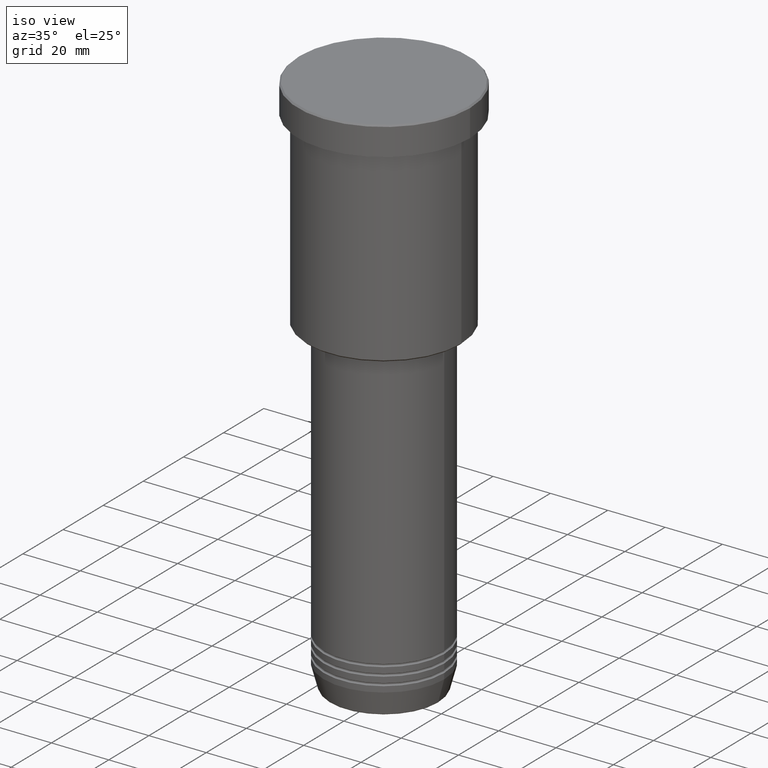
[diagram: clean part render]
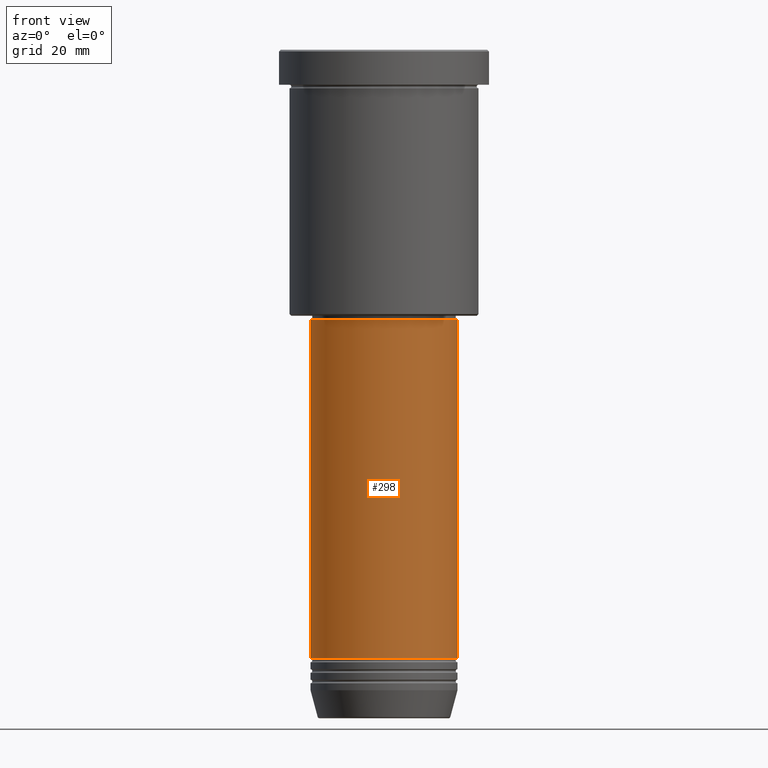
[diagram: tour spotlight — one face highlighted and labeled with its STEP entity id]
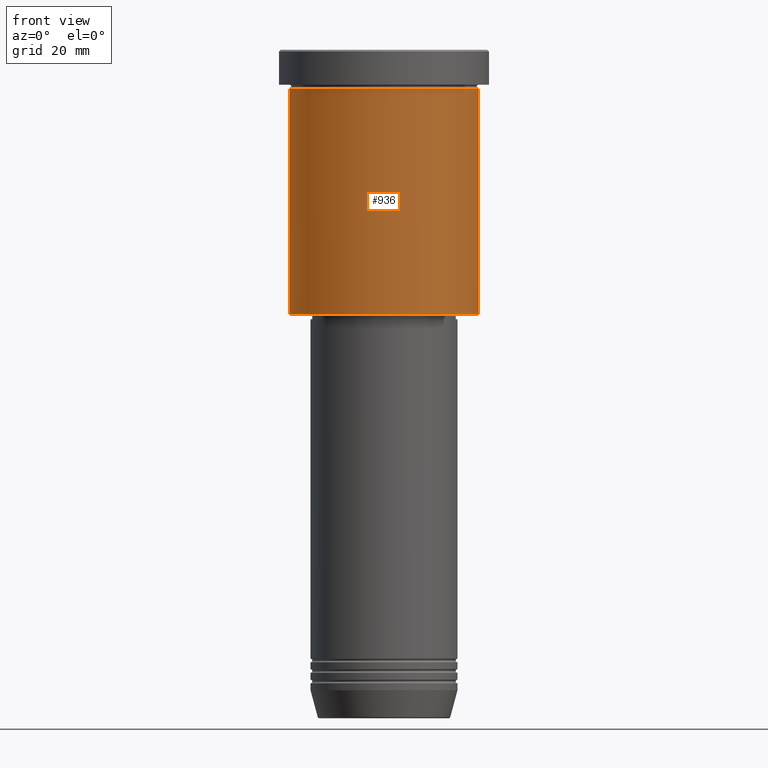
[diagram: tour spotlight — one face highlighted and labeled with its STEP entity id]
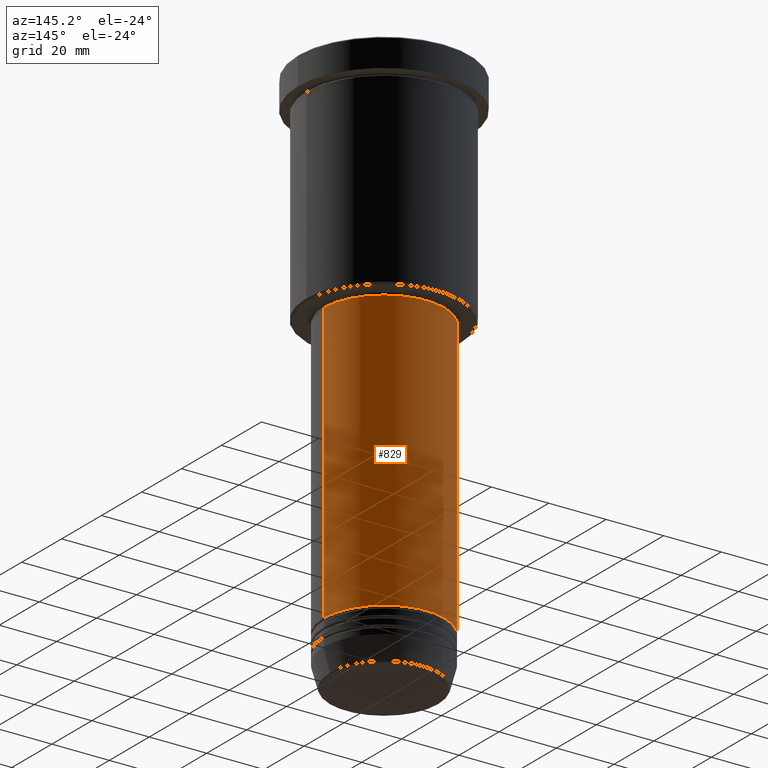
[diagram: tour spotlight — one face highlighted and labeled with its STEP entity id]
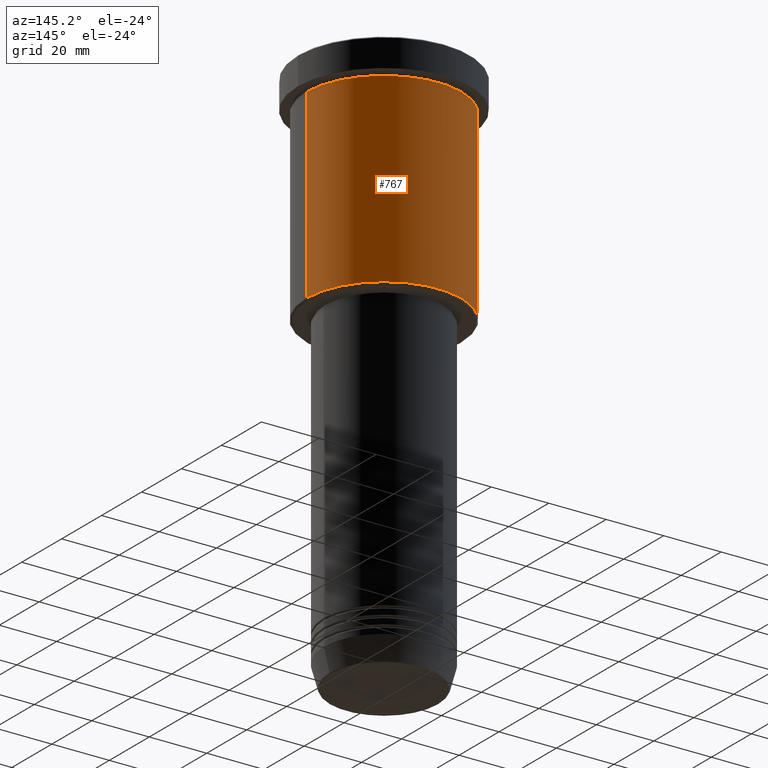
[diagram: tour spotlight — one face highlighted and labeled with its STEP entity id]
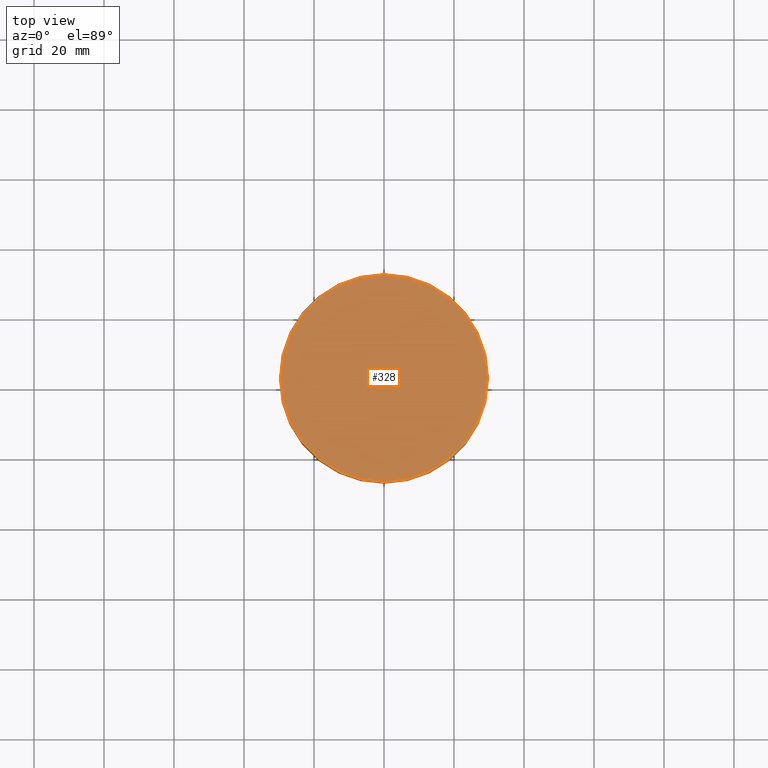
[diagram: tour spotlight — one face highlighted and labeled with its STEP entity id]
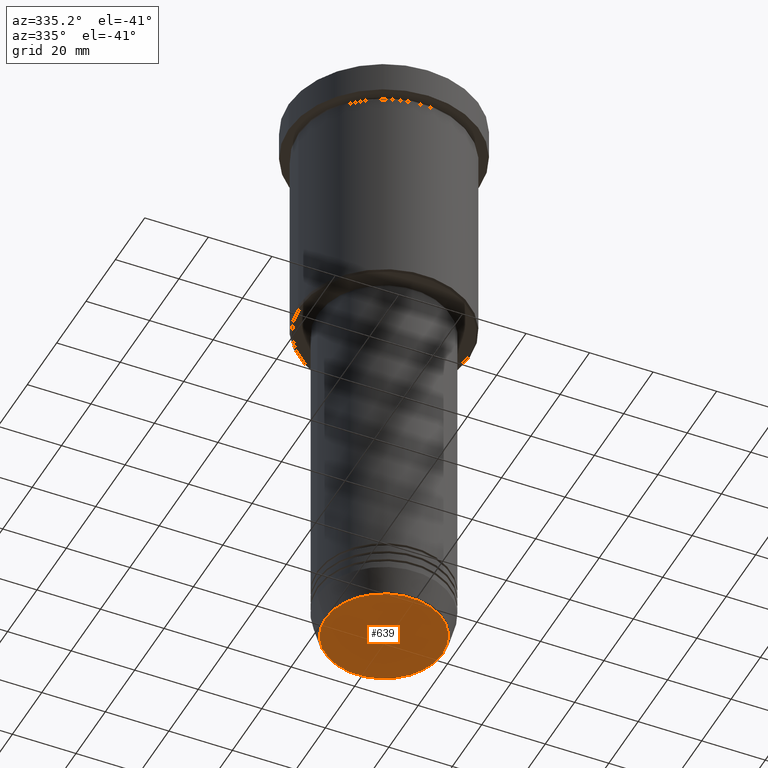
[diagram: tour spotlight — one face highlighted and labeled with its STEP entity id]
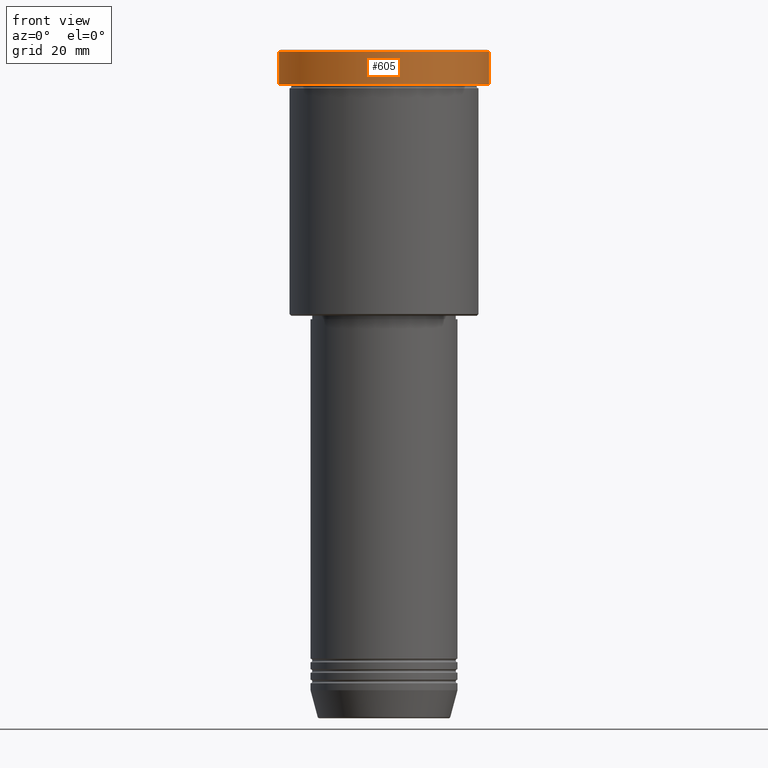
[diagram: tour spotlight — one face highlighted and labeled with its STEP entity id]
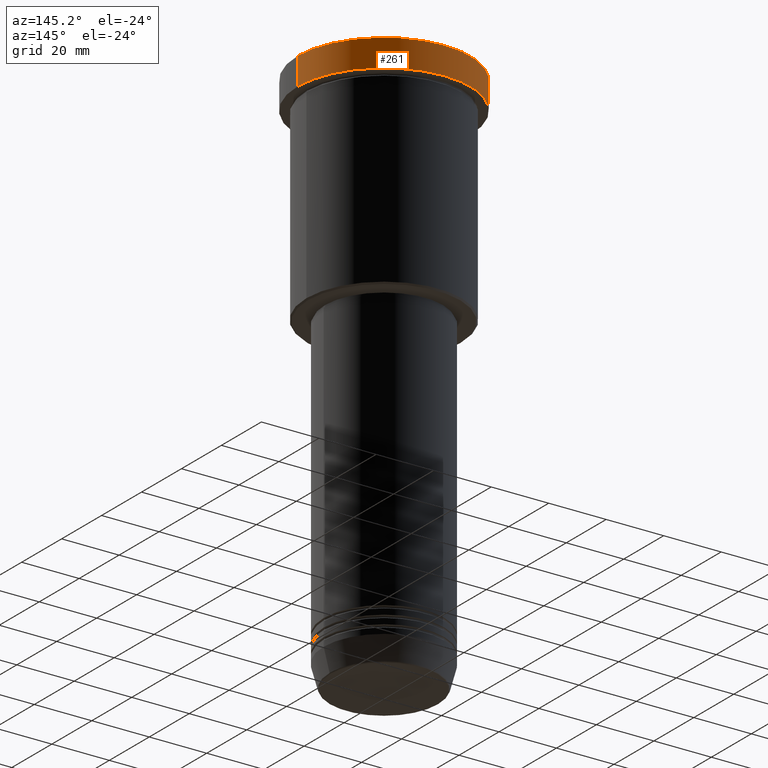
[diagram: tour spotlight — one face highlighted and labeled with its STEP entity id]
A machine part: a face-by-face anatomy tour. The part has 43 B-rep faces; the first image is the clean iso view, then the 8 largest visible faces are spotlighted one at a time (largest first), each with its STEP entity span.

Face 1 — front view, entity #298. In plain terms, the highlighted cylindrical surface (partial cylindrical patch) has radius 21 mm, axis along (-0, -0, 1).
Definition (entity closure, byte-faithful):
#11 = AXIS2_PLACEMENT_3D ( 'NONE', #70, #1156, #1179 ) ;
#22 = CARTESIAN_POINT ( 'NONE',  ( -21.00000000000000000, 2.571758278209441661E-15, 0.000000000000000000 ) ) ;
#27 = DIRECTION ( 'NONE',  ( -0.000000000000000000, -0.000000000000000000, 1.000000000000000000 ) ) ;
#48 = CARTESIAN_POINT ( 'NONE',  ( 21.00000000000000000, 0.000000000000000000, -174.0000000000000000 ) ) ;
#70 = CARTESIAN_POINT ( 'NONE',  ( 0.000000000000000000, 0.000000000000000000, -174.0000000000000000 ) ) ;
#79 = VERTEX_POINT ( 'NONE', #671 ) ;
#90 = AXIS2_PLACEMENT_3D ( 'NONE', #856, #1044, #472 ) ;
#97 = EDGE_CURVE ( 'NONE', #403, #1038, #1109, .T. ) ;
#123 = CARTESIAN_POINT ( 'NONE',  ( 21.00000000000000000, 0.000000000000000000, -77.00000000000001421 ) ) ;
#127 = EDGE_CURVE ( 'NONE', #712, #79, #455, .T. ) ;
#151 = CARTESIAN_POINT ( 'NONE',  ( -21.00000000000000000, 2.571758278209441661E-15, -174.0000000000000000 ) ) ;
#189 = VECTOR ( 'NONE', #27, 1000.000000000000000 ) ;
#243 = AXIS2_PLACEMENT_3D ( 'NONE', #1085, #290, #271 ) ;
#271 = DIRECTION ( 'NONE',  ( 1.000000000000000000, 0.000000000000000000, 0.000000000000000000 ) ) ;
#290 = DIRECTION ( 'NONE',  ( -0.000000000000000000, -0.000000000000000000, 1.000000000000000000 ) ) ;
#298 = ADVANCED_FACE ( 'NONE', ( #1169 ), #804, .T. ) ;
#314 = ORIENTED_EDGE ( 'NONE', *, *, #343, .F. ) ;
#343 = EDGE_CURVE ( 'NONE', #79, #1038, #1018, .T. ) ;
#389 = ORIENTED_EDGE ( 'NONE', *, *, #127, .F. ) ;
#392 = DIRECTION ( 'NONE',  ( -0.000000000000000000, -0.000000000000000000, 1.000000000000000000 ) ) ;
#403 = VERTEX_POINT ( 'NONE', #48 ) ;
#455 = LINE ( 'NONE', #22, #189 ) ;
#472 = DIRECTION ( 'NONE',  ( 1.000000000000000000, 0.000000000000000000, 0.000000000000000000 ) ) ;
#535 = ORIENTED_EDGE ( 'NONE', *, *, #812, .T. ) ;
#671 = CARTESIAN_POINT ( 'NONE',  ( -21.00000000000000000, 2.571758278209441661E-15, -77.00000000000001421 ) ) ;
#712 = VERTEX_POINT ( 'NONE', #151 ) ;
#739 = CIRCLE ( 'NONE', #11, 21.00000000000000000 ) ;
#747 = CARTESIAN_POINT ( 'NONE',  ( 21.00000000000000000, 0.000000000000000000, 0.000000000000000000 ) ) ;
#754 = ORIENTED_EDGE ( 'NONE', *, *, #97, .T. ) ;
#804 = CYLINDRICAL_SURFACE ( 'NONE', #243, 21.00000000000000000 ) ;
#812 = EDGE_CURVE ( 'NONE', #712, #403, #739, .T. ) ;
#856 = CARTESIAN_POINT ( 'NONE',  ( 0.000000000000000000, 0.000000000000000000, -77.00000000000001421 ) ) ;
#1018 = CIRCLE ( 'NONE', #90, 21.00000000000000000 ) ;
#1038 = VERTEX_POINT ( 'NONE', #123 ) ;
#1044 = DIRECTION ( 'NONE',  ( -0.000000000000000000, -0.000000000000000000, 1.000000000000000000 ) ) ;
#1079 = VECTOR ( 'NONE', #392, 1000.000000000000000 ) ;
#1085 = CARTESIAN_POINT ( 'NONE',  ( 0.000000000000000000, 0.000000000000000000, 0.000000000000000000 ) ) ;
#1093 = EDGE_LOOP ( 'NONE', ( #389, #535, #754, #314 ) ) ;
#1109 = LINE ( 'NONE', #747, #1079 ) ;
#1156 = DIRECTION ( 'NONE',  ( -0.000000000000000000, -0.000000000000000000, 1.000000000000000000 ) ) ;
#1169 = FACE_OUTER_BOUND ( 'NONE', #1093, .T. ) ;
#1179 = DIRECTION ( 'NONE',  ( 1.000000000000000000, 0.000000000000000000, 0.000000000000000000 ) ) ;

Face 2 — front view, entity #936. In plain terms, the highlighted cylindrical surface (partial cylindrical patch) has radius 27 mm, axis along (-0, -0, 1).
Definition (entity closure, byte-faithful):
#13 = VECTOR ( 'NONE', #251, 1000.000000000000000 ) ;
#23 = EDGE_CURVE ( 'NONE', #44, #197, #736, .T. ) ;
#44 = VERTEX_POINT ( 'NONE', #540 ) ;
#98 = ORIENTED_EDGE ( 'NONE', *, *, #1121, .T. ) ;
#197 = VERTEX_POINT ( 'NONE', #461 ) ;
#205 = EDGE_CURVE ( 'NONE', #1088, #44, #922, .T. ) ;
#207 = CIRCLE ( 'NONE', #779, 27.00000000000000355 ) ;
#242 = EDGE_LOOP ( 'NONE', ( #819, #1155, #98, #610 ) ) ;
#248 = VERTEX_POINT ( 'NONE', #1123 ) ;
#251 = DIRECTION ( 'NONE',  ( -0.000000000000000000, -0.000000000000000000, 1.000000000000000000 ) ) ;
#252 = CARTESIAN_POINT ( 'NONE',  ( 0.000000000000000000, 0.000000000000000000, 0.000000000000000000 ) ) ;
#277 = DIRECTION ( 'NONE',  ( -0.000000000000000000, -0.000000000000000000, 1.000000000000000000 ) ) ;
#433 = AXIS2_PLACEMENT_3D ( 'NONE', #252, #277, #533 ) ;
#435 = EDGE_CURVE ( 'NONE', #1088, #248, #207, .T. ) ;
#461 = CARTESIAN_POINT ( 'NONE',  ( 27.00000000000000355, 0.000000000000000000, -10.99999999999999289 ) ) ;
#533 = DIRECTION ( 'NONE',  ( 1.000000000000000000, 0.000000000000000000, 0.000000000000000000 ) ) ;
#540 = CARTESIAN_POINT ( 'NONE',  ( -27.00000000000000355, 3.306546357697854128E-15, -10.99999999999999289 ) ) ;
#544 = CARTESIAN_POINT ( 'NONE',  ( 0.000000000000000000, 0.000000000000000000, -10.99999999999999289 ) ) ;
#554 = DIRECTION ( 'NONE',  ( -0.000000000000000000, -0.000000000000000000, 1.000000000000000000 ) ) ;
#595 = CARTESIAN_POINT ( 'NONE',  ( -27.00000000000000355, 3.306546357697854128E-15, -75.50000000000000000 ) ) ;
#610 = ORIENTED_EDGE ( 'NONE', *, *, #23, .F. ) ;
#632 = DIRECTION ( 'NONE',  ( 1.000000000000000000, 0.000000000000000000, 0.000000000000000000 ) ) ;
#658 = DIRECTION ( 'NONE',  ( -1.000000000000000000, 0.000000000000000000, 0.000000000000000000 ) ) ;
#685 = VECTOR ( 'NONE', #554, 1000.000000000000000 ) ;
#715 = LINE ( 'NONE', #1075, #13 ) ;
#719 = DIRECTION ( 'NONE',  ( -0.000000000000000000, -0.000000000000000000, 1.000000000000000000 ) ) ;
#736 = CIRCLE ( 'NONE', #1001, 27.00000000000000355 ) ;
#779 = AXIS2_PLACEMENT_3D ( 'NONE', #1128, #946, #658 ) ;
#819 = ORIENTED_EDGE ( 'NONE', *, *, #205, .F. ) ;
#835 = CARTESIAN_POINT ( 'NONE',  ( -27.00000000000000355, 3.306546357697854128E-15, 0.000000000000000000 ) ) ;
#922 = LINE ( 'NONE', #835, #685 ) ;
#936 = ADVANCED_FACE ( 'NONE', ( #1090 ), #990, .T. ) ;
#946 = DIRECTION ( 'NONE',  ( -0.000000000000000000, -0.000000000000000000, 1.000000000000000000 ) ) ;
#990 = CYLINDRICAL_SURFACE ( 'NONE', #433, 27.00000000000000355 ) ;
#1001 = AXIS2_PLACEMENT_3D ( 'NONE', #544, #719, #632 ) ;
#1075 = CARTESIAN_POINT ( 'NONE',  ( 27.00000000000000355, 0.000000000000000000, 0.000000000000000000 ) ) ;
#1088 = VERTEX_POINT ( 'NONE', #595 ) ;
#1090 = FACE_OUTER_BOUND ( 'NONE', #242, .T. ) ;
#1121 = EDGE_CURVE ( 'NONE', #248, #197, #715, .T. ) ;
#1123 = CARTESIAN_POINT ( 'NONE',  ( 27.00000000000000355, 0.000000000000000000, -75.50000000000000000 ) ) ;
#1128 = CARTESIAN_POINT ( 'NONE',  ( 0.000000000000000000, 0.000000000000000000, -75.50000000000000000 ) ) ;
#1155 = ORIENTED_EDGE ( 'NONE', *, *, #435, .T. ) ;

Face 3 — auxiliary view, entity #829. In plain terms, the highlighted cylindrical surface (partial cylindrical patch) has radius 21 mm, axis along (-0, -0, 1).
Definition (entity closure, byte-faithful):
#22 = CARTESIAN_POINT ( 'NONE',  ( -21.00000000000000000, 2.571758278209441661E-15, 0.000000000000000000 ) ) ;
#27 = DIRECTION ( 'NONE',  ( -0.000000000000000000, -0.000000000000000000, 1.000000000000000000 ) ) ;
#48 = CARTESIAN_POINT ( 'NONE',  ( 21.00000000000000000, 0.000000000000000000, -174.0000000000000000 ) ) ;
#79 = VERTEX_POINT ( 'NONE', #671 ) ;
#85 = DIRECTION ( 'NONE',  ( 1.000000000000000000, 0.000000000000000000, 0.000000000000000000 ) ) ;
#97 = EDGE_CURVE ( 'NONE', #403, #1038, #1109, .T. ) ;
#123 = CARTESIAN_POINT ( 'NONE',  ( 21.00000000000000000, 0.000000000000000000, -77.00000000000001421 ) ) ;
#127 = EDGE_CURVE ( 'NONE', #712, #79, #455, .T. ) ;
#151 = CARTESIAN_POINT ( 'NONE',  ( -21.00000000000000000, 2.571758278209441661E-15, -174.0000000000000000 ) ) ;
#179 = CARTESIAN_POINT ( 'NONE',  ( 0.000000000000000000, 0.000000000000000000, -174.0000000000000000 ) ) ;
#189 = VECTOR ( 'NONE', #27, 1000.000000000000000 ) ;
#190 = CIRCLE ( 'NONE', #586, 21.00000000000000000 ) ;
#232 = ORIENTED_EDGE ( 'NONE', *, *, #127, .T. ) ;
#241 = DIRECTION ( 'NONE',  ( -0.000000000000000000, -0.000000000000000000, 1.000000000000000000 ) ) ;
#253 = CARTESIAN_POINT ( 'NONE',  ( 0.000000000000000000, 0.000000000000000000, -77.00000000000001421 ) ) ;
#266 = AXIS2_PLACEMENT_3D ( 'NONE', #315, #1042, #1153 ) ;
#315 = CARTESIAN_POINT ( 'NONE',  ( 0.000000000000000000, 0.000000000000000000, 0.000000000000000000 ) ) ;
#334 = FACE_OUTER_BOUND ( 'NONE', #1170, .T. ) ;
#392 = DIRECTION ( 'NONE',  ( -0.000000000000000000, -0.000000000000000000, 1.000000000000000000 ) ) ;
#403 = VERTEX_POINT ( 'NONE', #48 ) ;
#455 = LINE ( 'NONE', #22, #189 ) ;
#481 = EDGE_CURVE ( 'NONE', #1038, #79, #190, .T. ) ;
#586 = AXIS2_PLACEMENT_3D ( 'NONE', #253, #241, #1152 ) ;
#671 = CARTESIAN_POINT ( 'NONE',  ( -21.00000000000000000, 2.571758278209441661E-15, -77.00000000000001421 ) ) ;
#712 = VERTEX_POINT ( 'NONE', #151 ) ;
#747 = CARTESIAN_POINT ( 'NONE',  ( 21.00000000000000000, 0.000000000000000000, 0.000000000000000000 ) ) ;
#829 = ADVANCED_FACE ( 'NONE', ( #334 ), #1130, .T. ) ;
#891 = ORIENTED_EDGE ( 'NONE', *, *, #481, .F. ) ;
#912 = ORIENTED_EDGE ( 'NONE', *, *, #944, .T. ) ;
#944 = EDGE_CURVE ( 'NONE', #403, #712, #1100, .T. ) ;
#1038 = VERTEX_POINT ( 'NONE', #123 ) ;
#1042 = DIRECTION ( 'NONE',  ( -0.000000000000000000, -0.000000000000000000, 1.000000000000000000 ) ) ;
#1045 = ORIENTED_EDGE ( 'NONE', *, *, #97, .F. ) ;
#1079 = VECTOR ( 'NONE', #392, 1000.000000000000000 ) ;
#1100 = CIRCLE ( 'NONE', #1101, 21.00000000000000000 ) ;
#1101 = AXIS2_PLACEMENT_3D ( 'NONE', #179, #1165, #85 ) ;
#1109 = LINE ( 'NONE', #747, #1079 ) ;
#1130 = CYLINDRICAL_SURFACE ( 'NONE', #266, 21.00000000000000000 ) ;
#1152 = DIRECTION ( 'NONE',  ( 1.000000000000000000, 0.000000000000000000, 0.000000000000000000 ) ) ;
#1153 = DIRECTION ( 'NONE',  ( 1.000000000000000000, 0.000000000000000000, 0.000000000000000000 ) ) ;
#1165 = DIRECTION ( 'NONE',  ( -0.000000000000000000, -0.000000000000000000, 1.000000000000000000 ) ) ;
#1170 = EDGE_LOOP ( 'NONE', ( #912, #232, #891, #1045 ) ) ;

Face 4 — auxiliary view, entity #767. In plain terms, the highlighted cylindrical surface (partial cylindrical patch) has radius 27 mm, axis along (-0, -0, 1).
Definition (entity closure, byte-faithful):
#13 = VECTOR ( 'NONE', #251, 1000.000000000000000 ) ;
#16 = DIRECTION ( 'NONE',  ( -0.000000000000000000, -0.000000000000000000, 1.000000000000000000 ) ) ;
#37 = ORIENTED_EDGE ( 'NONE', *, *, #194, .F. ) ;
#44 = VERTEX_POINT ( 'NONE', #540 ) ;
#103 = DIRECTION ( 'NONE',  ( -0.000000000000000000, -0.000000000000000000, 1.000000000000000000 ) ) ;
#109 = AXIS2_PLACEMENT_3D ( 'NONE', #834, #16, #565 ) ;
#194 = EDGE_CURVE ( 'NONE', #197, #44, #1148, .T. ) ;
#195 = CARTESIAN_POINT ( 'NONE',  ( 0.000000000000000000, 0.000000000000000000, -10.99999999999999289 ) ) ;
#197 = VERTEX_POINT ( 'NONE', #461 ) ;
#205 = EDGE_CURVE ( 'NONE', #1088, #44, #922, .T. ) ;
#248 = VERTEX_POINT ( 'NONE', #1123 ) ;
#251 = DIRECTION ( 'NONE',  ( -0.000000000000000000, -0.000000000000000000, 1.000000000000000000 ) ) ;
#276 = ORIENTED_EDGE ( 'NONE', *, *, #1046, .T. ) ;
#390 = FACE_OUTER_BOUND ( 'NONE', #789, .T. ) ;
#461 = CARTESIAN_POINT ( 'NONE',  ( 27.00000000000000355, 0.000000000000000000, -10.99999999999999289 ) ) ;
#473 = DIRECTION ( 'NONE',  ( 1.000000000000000000, 0.000000000000000000, 0.000000000000000000 ) ) ;
#540 = CARTESIAN_POINT ( 'NONE',  ( -27.00000000000000355, 3.306546357697854128E-15, -10.99999999999999289 ) ) ;
#554 = DIRECTION ( 'NONE',  ( -0.000000000000000000, -0.000000000000000000, 1.000000000000000000 ) ) ;
#565 = DIRECTION ( 'NONE',  ( -1.000000000000000000, 0.000000000000000000, 0.000000000000000000 ) ) ;
#575 = DIRECTION ( 'NONE',  ( -0.000000000000000000, -0.000000000000000000, 1.000000000000000000 ) ) ;
#595 = CARTESIAN_POINT ( 'NONE',  ( -27.00000000000000355, 3.306546357697854128E-15, -75.50000000000000000 ) ) ;
#685 = VECTOR ( 'NONE', #554, 1000.000000000000000 ) ;
#715 = LINE ( 'NONE', #1075, #13 ) ;
#751 = CYLINDRICAL_SURFACE ( 'NONE', #1043, 27.00000000000000355 ) ;
#767 = ADVANCED_FACE ( 'NONE', ( #390 ), #751, .T. ) ;
#777 = ORIENTED_EDGE ( 'NONE', *, *, #1121, .F. ) ;
#789 = EDGE_LOOP ( 'NONE', ( #276, #920, #37, #777 ) ) ;
#834 = CARTESIAN_POINT ( 'NONE',  ( 0.000000000000000000, 0.000000000000000000, -75.50000000000000000 ) ) ;
#835 = CARTESIAN_POINT ( 'NONE',  ( -27.00000000000000355, 3.306546357697854128E-15, 0.000000000000000000 ) ) ;
#920 = ORIENTED_EDGE ( 'NONE', *, *, #205, .T. ) ;
#922 = LINE ( 'NONE', #835, #685 ) ;
#941 = DIRECTION ( 'NONE',  ( 1.000000000000000000, 0.000000000000000000, 0.000000000000000000 ) ) ;
#1023 = CARTESIAN_POINT ( 'NONE',  ( 0.000000000000000000, 0.000000000000000000, 0.000000000000000000 ) ) ;
#1043 = AXIS2_PLACEMENT_3D ( 'NONE', #1023, #575, #941 ) ;
#1046 = EDGE_CURVE ( 'NONE', #248, #1088, #1103, .T. ) ;
#1075 = CARTESIAN_POINT ( 'NONE',  ( 27.00000000000000355, 0.000000000000000000, 0.000000000000000000 ) ) ;
#1088 = VERTEX_POINT ( 'NONE', #595 ) ;
#1103 = CIRCLE ( 'NONE', #109, 27.00000000000000355 ) ;
#1121 = EDGE_CURVE ( 'NONE', #248, #197, #715, .T. ) ;
#1123 = CARTESIAN_POINT ( 'NONE',  ( 27.00000000000000355, 0.000000000000000000, -75.50000000000000000 ) ) ;
#1148 = CIRCLE ( 'NONE', #1172, 27.00000000000000355 ) ;
#1172 = AXIS2_PLACEMENT_3D ( 'NONE', #195, #103, #473 ) ;

Face 5 — top view, entity #328. In plain terms, the highlighted planar face has unit normal (0, -0, 1).
Definition (entity closure, byte-faithful):
#74 = CIRCLE ( 'NONE', #953, 29.49999999999994316 ) ;
#102 = CARTESIAN_POINT ( 'NONE',  ( 0.000000000000000000, 0.000000000000000000, 0.000000000000000000 ) ) ;
#206 = AXIS2_PLACEMENT_3D ( 'NONE', #102, #460, #382 ) ;
#226 = DIRECTION ( 'NONE',  ( 0.000000000000000000, -0.000000000000000000, 1.000000000000000000 ) ) ;
#297 = ORIENTED_EDGE ( 'NONE', *, *, #974, .T. ) ;
#312 = EDGE_CURVE ( 'NONE', #1020, #1036, #964, .T. ) ;
#321 = EDGE_LOOP ( 'NONE', ( #297, #915 ) ) ;
#328 = ADVANCED_FACE ( 'NONE', ( #742 ), #564, .T. ) ;
#331 = DIRECTION ( 'NONE',  ( -0.000000000000000000, -0.000000000000000000, 1.000000000000000000 ) ) ;
#382 = DIRECTION ( 'NONE',  ( 1.000000000000000000, 0.000000000000000000, 0.000000000000000000 ) ) ;
#460 = DIRECTION ( 'NONE',  ( -0.000000000000000000, -0.000000000000000000, 1.000000000000000000 ) ) ;
#564 = PLANE ( 'NONE',  #878 ) ;
#574 = CARTESIAN_POINT ( 'NONE',  ( -29.49999999999994316, 0.000000000000000000, 0.000000000000000000 ) ) ;
#594 = DIRECTION ( 'NONE',  ( 1.000000000000000000, 0.000000000000000000, 0.000000000000000000 ) ) ;
#742 = FACE_OUTER_BOUND ( 'NONE', #321, .T. ) ;
#765 = CARTESIAN_POINT ( 'NONE',  ( 29.49999999999994316, 3.643324227463372235E-15, 0.000000000000000000 ) ) ;
#878 = AXIS2_PLACEMENT_3D ( 'NONE', #928, #226, #594 ) ;
#915 = ORIENTED_EDGE ( 'NONE', *, *, #312, .T. ) ;
#928 = CARTESIAN_POINT ( 'NONE',  ( 0.000000000000000000, 0.000000000000000000, 0.000000000000000000 ) ) ;
#953 = AXIS2_PLACEMENT_3D ( 'NONE', #959, #331, #1061 ) ;
#959 = CARTESIAN_POINT ( 'NONE',  ( 0.000000000000000000, 0.000000000000000000, 0.000000000000000000 ) ) ;
#964 = CIRCLE ( 'NONE', #206, 29.49999999999994316 ) ;
#974 = EDGE_CURVE ( 'NONE', #1036, #1020, #74, .T. ) ;
#1020 = VERTEX_POINT ( 'NONE', #765 ) ;
#1036 = VERTEX_POINT ( 'NONE', #574 ) ;
#1061 = DIRECTION ( 'NONE',  ( 1.000000000000000000, 0.000000000000000000, 0.000000000000000000 ) ) ;

Face 6 — auxiliary view, entity #639. In plain terms, the highlighted planar face has unit normal (0, -0, 1).
Definition (entity closure, byte-faithful):
#17 = DIRECTION ( 'NONE',  ( 1.000000000000000000, 0.000000000000000000, 0.000000000000000000 ) ) ;
#29 = AXIS2_PLACEMENT_3D ( 'NONE', #117, #830, #667 ) ;
#86 = EDGE_CURVE ( 'NONE', #826, #1134, #483, .T. ) ;
#117 = CARTESIAN_POINT ( 'NONE',  ( 0.000000000000000000, 0.000000000000000000, -191.0000000000000000 ) ) ;
#302 = CARTESIAN_POINT ( 'NONE',  ( 0.000000000000000000, 0.000000000000000000, -191.0000000000000000 ) ) ;
#363 = EDGE_LOOP ( 'NONE', ( #1162, #1176 ) ) ;
#415 = DIRECTION ( 'NONE',  ( 1.000000000000000000, 0.000000000000000000, 0.000000000000000000 ) ) ;
#483 = CIRCLE ( 'NONE', #500, 18.47274296656154391 ) ;
#500 = AXIS2_PLACEMENT_3D ( 'NONE', #302, #1099, #17 ) ;
#506 = CARTESIAN_POINT ( 'NONE',  ( -18.47274296656154391, 2.291831503831604046E-15, -191.0000000000000000 ) ) ;
#509 = EDGE_CURVE ( 'NONE', #1134, #826, #548, .T. ) ;
#548 = CIRCLE ( 'NONE', #879, 18.47274296656154391 ) ;
#561 = PLANE ( 'NONE',  #29 ) ;
#639 = ADVANCED_FACE ( 'NONE', ( #657 ), #561, .F. ) ;
#657 = FACE_OUTER_BOUND ( 'NONE', #363, .T. ) ;
#667 = DIRECTION ( 'NONE',  ( 1.000000000000000000, 0.000000000000000000, 0.000000000000000000 ) ) ;
#807 = CARTESIAN_POINT ( 'NONE',  ( 0.000000000000000000, 0.000000000000000000, -191.0000000000000000 ) ) ;
#826 = VERTEX_POINT ( 'NONE', #506 ) ;
#830 = DIRECTION ( 'NONE',  ( 0.000000000000000000, -0.000000000000000000, 1.000000000000000000 ) ) ;
#879 = AXIS2_PLACEMENT_3D ( 'NONE', #807, #886, #415 ) ;
#886 = DIRECTION ( 'NONE',  ( 0.000000000000000000, 0.000000000000000000, -1.000000000000000000 ) ) ;
#1099 = DIRECTION ( 'NONE',  ( 0.000000000000000000, 0.000000000000000000, -1.000000000000000000 ) ) ;
#1134 = VERTEX_POINT ( 'NONE', #1163 ) ;
#1162 = ORIENTED_EDGE ( 'NONE', *, *, #509, .T. ) ;
#1163 = CARTESIAN_POINT ( 'NONE',  ( 18.47274296656154391, 0.000000000000000000, -191.0000000000000000 ) ) ;
#1176 = ORIENTED_EDGE ( 'NONE', *, *, #86, .T. ) ;

Face 7 — front view, entity #605. In plain terms, the highlighted cylindrical surface (partial cylindrical patch) has radius 30 mm, axis along (-0, -0, 1).
Definition (entity closure, byte-faithful):
#6 = CARTESIAN_POINT ( 'NONE',  ( -30.00000000000000000, 3.673940397442059178E-15, -9.999999999999992895 ) ) ;
#41 = LINE ( 'NONE', #301, #932 ) ;
#76 = CARTESIAN_POINT ( 'NONE',  ( 0.000000000000000000, 0.000000000000000000, 0.000000000000000000 ) ) ;
#92 = EDGE_CURVE ( 'NONE', #635, #808, #395, .T. ) ;
#128 = AXIS2_PLACEMENT_3D ( 'NONE', #76, #436, #710 ) ;
#198 = CARTESIAN_POINT ( 'NONE',  ( -30.00000000000000000, 3.673940397442059178E-15, 0.000000000000000000 ) ) ;
#225 = VECTOR ( 'NONE', #1027, 1000.000000000000000 ) ;
#246 = DIRECTION ( 'NONE',  ( 1.000000000000000000, 0.000000000000000000, 0.000000000000000000 ) ) ;
#281 = ORIENTED_EDGE ( 'NONE', *, *, #917, .T. ) ;
#293 = VERTEX_POINT ( 'NONE', #1011 ) ;
#301 = CARTESIAN_POINT ( 'NONE',  ( 30.00000000000000000, 0.000000000000000000, 0.000000000000000000 ) ) ;
#370 = CARTESIAN_POINT ( 'NONE',  ( 0.000000000000000000, 0.000000000000000000, -0.5000000000000628386 ) ) ;
#394 = EDGE_CURVE ( 'NONE', #1142, #293, #41, .T. ) ;
#395 = LINE ( 'NONE', #198, #225 ) ;
#436 = DIRECTION ( 'NONE',  ( -0.000000000000000000, -0.000000000000000000, 1.000000000000000000 ) ) ;
#549 = DIRECTION ( 'NONE',  ( 0.000000000000000000, 0.000000000000000000, -1.000000000000000000 ) ) ;
#605 = ADVANCED_FACE ( 'NONE', ( #984 ), #900, .T. ) ;
#612 = CARTESIAN_POINT ( 'NONE',  ( -30.00000000000000000, 3.673940397442059178E-15, -0.5000000000000628386 ) ) ;
#621 = CARTESIAN_POINT ( 'NONE',  ( 30.00000000000000000, 0.000000000000000000, -9.999999999999992895 ) ) ;
#635 = VERTEX_POINT ( 'NONE', #6 ) ;
#687 = CIRCLE ( 'NONE', #1151, 30.00000000000000000 ) ;
#704 = AXIS2_PLACEMENT_3D ( 'NONE', #370, #549, #833 ) ;
#710 = DIRECTION ( 'NONE',  ( 1.000000000000000000, 0.000000000000000000, 0.000000000000000000 ) ) ;
#738 = ORIENTED_EDGE ( 'NONE', *, *, #92, .F. ) ;
#808 = VERTEX_POINT ( 'NONE', #612 ) ;
#833 = DIRECTION ( 'NONE',  ( 1.000000000000000000, 0.000000000000000000, 0.000000000000000000 ) ) ;
#874 = ORIENTED_EDGE ( 'NONE', *, *, #394, .T. ) ;
#900 = CYLINDRICAL_SURFACE ( 'NONE', #128, 30.00000000000000000 ) ;
#917 = EDGE_CURVE ( 'NONE', #635, #1142, #687, .T. ) ;
#932 = VECTOR ( 'NONE', #1122, 1000.000000000000000 ) ;
#935 = CIRCLE ( 'NONE', #704, 30.00000000000000000 ) ;
#958 = DIRECTION ( 'NONE',  ( -0.000000000000000000, -0.000000000000000000, 1.000000000000000000 ) ) ;
#981 = EDGE_LOOP ( 'NONE', ( #738, #281, #874, #994 ) ) ;
#984 = FACE_OUTER_BOUND ( 'NONE', #981, .T. ) ;
#994 = ORIENTED_EDGE ( 'NONE', *, *, #1051, .T. ) ;
#1011 = CARTESIAN_POINT ( 'NONE',  ( 30.00000000000000000, 0.000000000000000000, -0.5000000000000628386 ) ) ;
#1027 = DIRECTION ( 'NONE',  ( -0.000000000000000000, -0.000000000000000000, 1.000000000000000000 ) ) ;
#1051 = EDGE_CURVE ( 'NONE', #293, #808, #935, .T. ) ;
#1122 = DIRECTION ( 'NONE',  ( -0.000000000000000000, -0.000000000000000000, 1.000000000000000000 ) ) ;
#1142 = VERTEX_POINT ( 'NONE', #621 ) ;
#1151 = AXIS2_PLACEMENT_3D ( 'NONE', #1158, #958, #246 ) ;
#1158 = CARTESIAN_POINT ( 'NONE',  ( 0.000000000000000000, 0.000000000000000000, -9.999999999999992895 ) ) ;

Face 8 — auxiliary view, entity #261. In plain terms, the highlighted cylindrical surface (partial cylindrical patch) has radius 30 mm, axis along (-0, -0, 1).
Definition (entity closure, byte-faithful):
#6 = CARTESIAN_POINT ( 'NONE',  ( -30.00000000000000000, 3.673940397442059178E-15, -9.999999999999992895 ) ) ;
#15 = DIRECTION ( 'NONE',  ( -0.000000000000000000, -0.000000000000000000, 1.000000000000000000 ) ) ;
#41 = LINE ( 'NONE', #301, #932 ) ;
#72 = CIRCLE ( 'NONE', #550, 30.00000000000000000 ) ;
#84 = DIRECTION ( 'NONE',  ( 1.000000000000000000, 0.000000000000000000, 0.000000000000000000 ) ) ;
#92 = EDGE_CURVE ( 'NONE', #635, #808, #395, .T. ) ;
#198 = CARTESIAN_POINT ( 'NONE',  ( -30.00000000000000000, 3.673940397442059178E-15, 0.000000000000000000 ) ) ;
#225 = VECTOR ( 'NONE', #1027, 1000.000000000000000 ) ;
#260 = EDGE_LOOP ( 'NONE', ( #264, #1167, #726, #805 ) ) ;
#261 = ADVANCED_FACE ( 'NONE', ( #866 ), #708, .T. ) ;
#264 = ORIENTED_EDGE ( 'NONE', *, *, #650, .T. ) ;
#293 = VERTEX_POINT ( 'NONE', #1011 ) ;
#294 = DIRECTION ( 'NONE',  ( 1.000000000000000000, 0.000000000000000000, 0.000000000000000000 ) ) ;
#301 = CARTESIAN_POINT ( 'NONE',  ( 30.00000000000000000, 0.000000000000000000, 0.000000000000000000 ) ) ;
#394 = EDGE_CURVE ( 'NONE', #1142, #293, #41, .T. ) ;
#395 = LINE ( 'NONE', #198, #225 ) ;
#410 = AXIS2_PLACEMENT_3D ( 'NONE', #1108, #752, #294 ) ;
#423 = EDGE_CURVE ( 'NONE', #808, #293, #1098, .T. ) ;
#426 = AXIS2_PLACEMENT_3D ( 'NONE', #815, #15, #528 ) ;
#528 = DIRECTION ( 'NONE',  ( 1.000000000000000000, 0.000000000000000000, 0.000000000000000000 ) ) ;
#532 = CARTESIAN_POINT ( 'NONE',  ( 0.000000000000000000, 0.000000000000000000, -9.999999999999992895 ) ) ;
#550 = AXIS2_PLACEMENT_3D ( 'NONE', #532, #1164, #84 ) ;
#612 = CARTESIAN_POINT ( 'NONE',  ( -30.00000000000000000, 3.673940397442059178E-15, -0.5000000000000628386 ) ) ;
#621 = CARTESIAN_POINT ( 'NONE',  ( 30.00000000000000000, 0.000000000000000000, -9.999999999999992895 ) ) ;
#635 = VERTEX_POINT ( 'NONE', #6 ) ;
#650 = EDGE_CURVE ( 'NONE', #1142, #635, #72, .T. ) ;
#708 = CYLINDRICAL_SURFACE ( 'NONE', #426, 30.00000000000000000 ) ;
#726 = ORIENTED_EDGE ( 'NONE', *, *, #423, .T. ) ;
#752 = DIRECTION ( 'NONE',  ( 0.000000000000000000, 0.000000000000000000, -1.000000000000000000 ) ) ;
#805 = ORIENTED_EDGE ( 'NONE', *, *, #394, .F. ) ;
#808 = VERTEX_POINT ( 'NONE', #612 ) ;
#815 = CARTESIAN_POINT ( 'NONE',  ( 0.000000000000000000, 0.000000000000000000, 0.000000000000000000 ) ) ;
#866 = FACE_OUTER_BOUND ( 'NONE', #260, .T. ) ;
#932 = VECTOR ( 'NONE', #1122, 1000.000000000000000 ) ;
#1011 = CARTESIAN_POINT ( 'NONE',  ( 30.00000000000000000, 0.000000000000000000, -0.5000000000000628386 ) ) ;
#1027 = DIRECTION ( 'NONE',  ( -0.000000000000000000, -0.000000000000000000, 1.000000000000000000 ) ) ;
#1098 = CIRCLE ( 'NONE', #410, 30.00000000000000000 ) ;
#1108 = CARTESIAN_POINT ( 'NONE',  ( 0.000000000000000000, 0.000000000000000000, -0.5000000000000628386 ) ) ;
#1122 = DIRECTION ( 'NONE',  ( -0.000000000000000000, -0.000000000000000000, 1.000000000000000000 ) ) ;
#1142 = VERTEX_POINT ( 'NONE', #621 ) ;
#1164 = DIRECTION ( 'NONE',  ( -0.000000000000000000, -0.000000000000000000, 1.000000000000000000 ) ) ;
#1167 = ORIENTED_EDGE ( 'NONE', *, *, #92, .T. ) ;